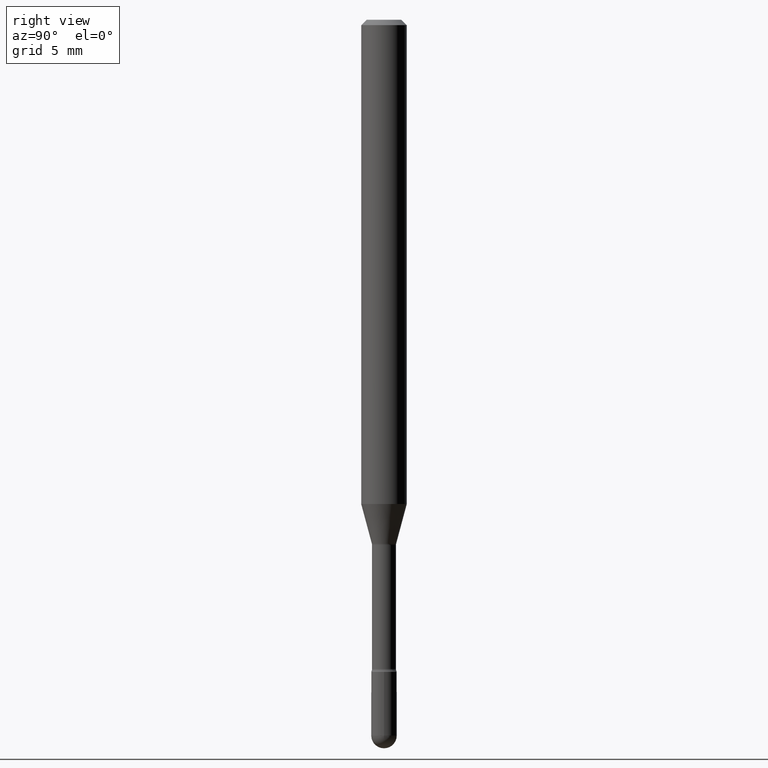
[diagram: clean part render]
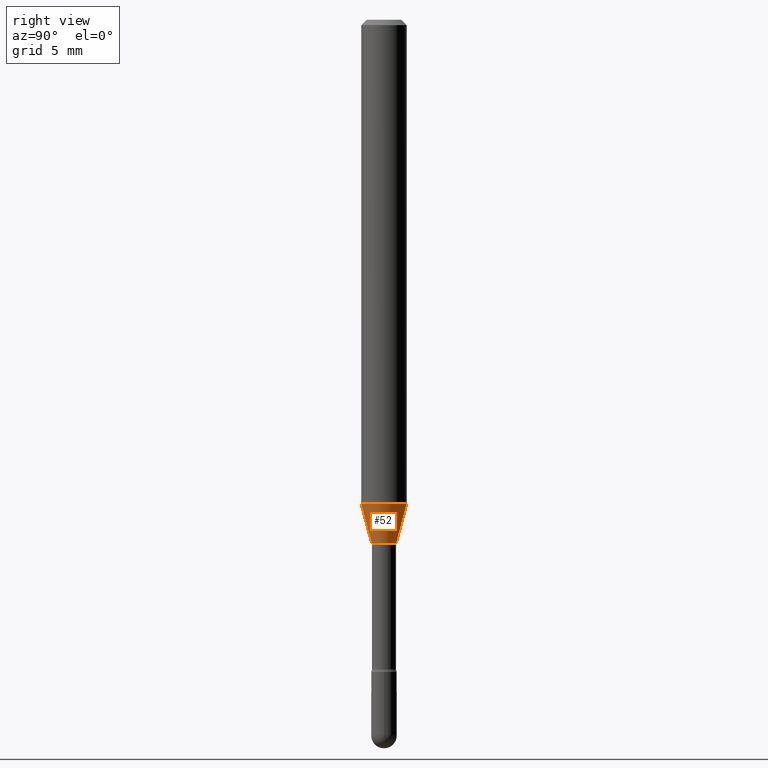
[diagram: same view with one face highlighted and labeled with its STEP entity id]
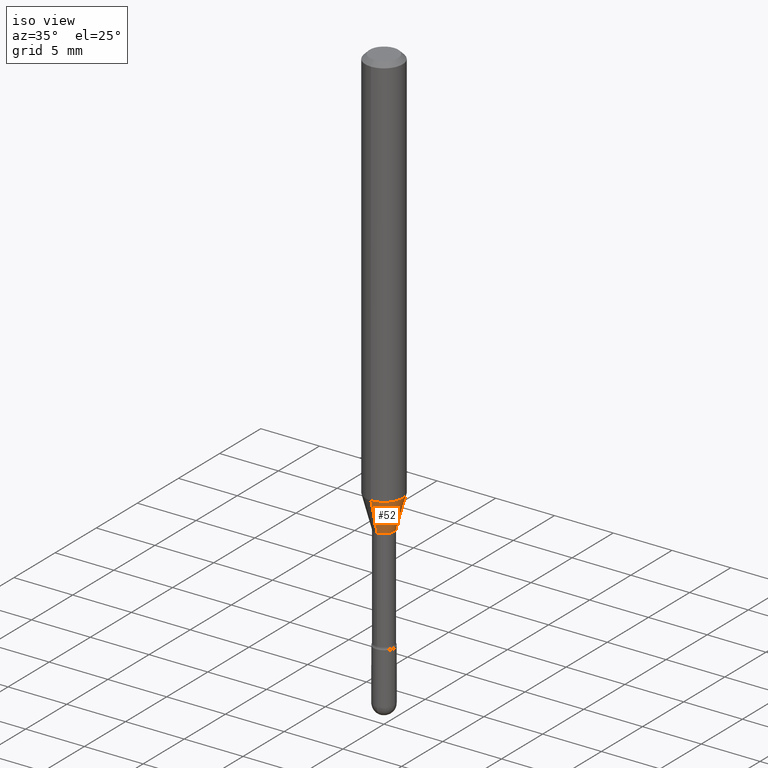
[diagram: same view with one face highlighted and labeled with its STEP entity id]
A machine part, right view. The second image highlights one B-rep face of the part: STEP entity #52.
A second angle (iso view) of the same face is appended — the face is thin or edge-on in the first view.
In plain terms, the highlighted conical surface has half-angle 15 deg.
Its self-contained STEP definition (entity closure, byte-faithful):
#20 = CARTESIAN_POINT ( 'NONE',  ( -4.364351673553592768E-16, -0.06250000000000467681, -1.329531296095961101 ) ) ;
#22 = CARTESIAN_POINT ( 'NONE',  ( 3.407447217031514627E-16, 0.03341111260565895330, -1.438092501787272992 ) ) ;
#52 = ADVANCED_FACE ( 'NONE', ( #254 ), #152, .T. ) ;
#59 = VECTOR ( 'NONE', #66, 39.37007874015749564 ) ;
#63 = DIRECTION ( 'NONE',  ( -6.982962677686266711E-15, -1.000000000000000000, 0.000000000000000000 ) ) ;
#66 = DIRECTION ( 'NONE',  ( -1.807323732225329350E-15, -0.2588190451025180194, 0.9659258262890689783 ) ) ;
#85 = CIRCLE ( 'NONE', #514, 0.03341111260566397706 ) ;
#88 = CARTESIAN_POINT ( 'NONE',  ( 3.516886647255418593E-29, -5.020963876562660420E-15, -1.438092501787272992 ) ) ;
#101 = AXIS2_PLACEMENT_3D ( 'NONE', #88, #436, #125 ) ;
#102 = EDGE_CURVE ( 'NONE', #331, #513, #302, .T. ) ;
#124 = CARTESIAN_POINT ( 'NONE',  ( -2.333085523452895390E-16, -0.03341111260566900082, -1.438092501787272992 ) ) ;
#125 = DIRECTION ( 'NONE',  ( -6.982962677686266711E-15, -1.000000000000000000, 0.000000000000000000 ) ) ;
#152 = CONICAL_SURFACE ( 'NONE', #101, 0.03341111260566397706, 0.2617993877991501850 ) ;
#175 = VECTOR ( 'NONE', #287, 39.37007874015748143 ) ;
#205 = LINE ( 'NONE', #124, #59 ) ;
#240 = EDGE_LOOP ( 'NONE', ( #323, #472, #249, #281 ) ) ;
#248 = CARTESIAN_POINT ( 'NONE',  ( 2.374002335562076701E-16, 0.03341111260565896024, -1.438092501787272992 ) ) ;
#249 = ORIENTED_EDGE ( 'NONE', *, *, #102, .F. ) ;
#254 = FACE_OUTER_BOUND ( 'NONE', #240, .T. ) ;
#263 = DIRECTION ( 'NONE',  ( -2.445521858214685892E-29, 3.491405365317297324E-15, 1.000000000000000000 ) ) ;
#266 = EDGE_CURVE ( 'NONE', #347, #280, #85, .T. ) ;
#280 = VERTEX_POINT ( 'NONE', #22 ) ;
#281 = ORIENTED_EDGE ( 'NONE', *, *, #379, .F. ) ;
#287 = DIRECTION ( 'NONE',  ( 1.839019923739599526E-15, 0.2588190451025248473, 0.9659258262890670910 ) ) ;
#302 = CIRCLE ( 'NONE', #441, 0.06250000000000000000 ) ;
#323 = ORIENTED_EDGE ( 'NONE', *, *, #266, .T. ) ;
#324 = LINE ( 'NONE', #248, #175 ) ;
#331 = VERTEX_POINT ( 'NONE', #20 ) ;
#345 = CARTESIAN_POINT ( 'NONE',  ( 3.251397845783175499E-29, -4.641932700546700706E-15, -1.329531296095961546 ) ) ;
#347 = VERTEX_POINT ( 'NONE', #373 ) ;
#373 = CARTESIAN_POINT ( 'NONE',  ( -2.333085523452895390E-16, -0.03341111260566900082, -1.438092501787272992 ) ) ;
#377 = CARTESIAN_POINT ( 'NONE',  ( 4.440892098500948609E-16, 0.06249999999999532319, -1.329531296095961768 ) ) ;
#379 = EDGE_CURVE ( 'NONE', #347, #331, #205, .T. ) ;
#402 = EDGE_CURVE ( 'NONE', #280, #513, #324, .T. ) ;
#436 = DIRECTION ( 'NONE',  ( -2.445521858214685892E-29, 3.491405365317297324E-15, 1.000000000000000000 ) ) ;
#441 = AXIS2_PLACEMENT_3D ( 'NONE', #345, #564, #488 ) ;
#472 = ORIENTED_EDGE ( 'NONE', *, *, #402, .T. ) ;
#488 = DIRECTION ( 'NONE',  ( -6.982962677686265922E-15, -1.000000000000000000, 4.370956789862821150E-15 ) ) ;
#502 = CARTESIAN_POINT ( 'NONE',  ( 3.516886647255418593E-29, -5.020963876562660420E-15, -1.438092501787272992 ) ) ;
#513 = VERTEX_POINT ( 'NONE', #377 ) ;
#514 = AXIS2_PLACEMENT_3D ( 'NONE', #502, #263, #63 ) ;
#564 = DIRECTION ( 'NONE',  ( -2.445521858214685892E-29, 3.491405365317297324E-15, 1.000000000000000000 ) ) ;